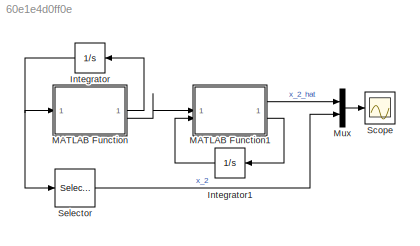
MODEL slx_60e1e4d0ff0e
KIND model
CONFIG AbsTol = auto
CONFIG EnableMultiTasking = off
CONFIG FixedStep = auto
CONFIG MaxStep = 0.01
CONFIG MinStep = auto
CONFIG RelTol = 1e-3
CONFIG SampleTimeConstraint = Unconstrained
CONFIG SolverName = VariableStepAuto
CONFIG StartTime = 0.0
CONFIG StopTime = 10.0
BLOCK [Integrator] Integrator
  InitialCondition = [0.01;0]
  NameLocation = top
BLOCK [Integrator] Integrator1
  InitialCondition = 0.1
  NameLocation = top
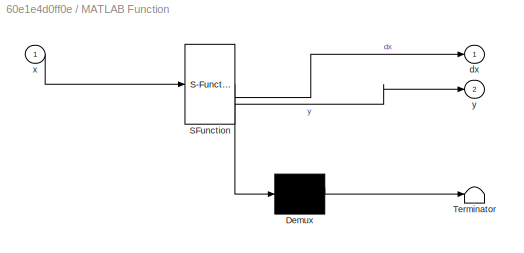
BLOCK [SubSystem] MATLAB Function
  ErrorFcn = Stateflow.Translate.translate
  LibrarySourceBlock = simulink/User-Defined\nFunctions/MATLAB Function
  PermitHierarchicalResolution = ExplicitOnly
  SFBlockType = MATLAB Function
  TreatAsAtomicUnit = on
BLOCK [Demux] MATLAB Function/ Demux 
  Outputs = 1
BLOCK [S-Function] MATLAB Function/ SFunction 
  EnableBusSupport = on
  FunctionName = sf_sfun
  PortCounts = [1 3]
  SFcnIsStateOwnerBlock = off
  SFunctionDeploymentMode = off
  Tag = Stateflow S-Function 2
BLOCK [Terminator] MATLAB Function/ Terminator 
BLOCK [Outport] MATLAB Function/dx
BLOCK [Inport] MATLAB Function/x
BLOCK [Outport] MATLAB Function/y
  Port = 2
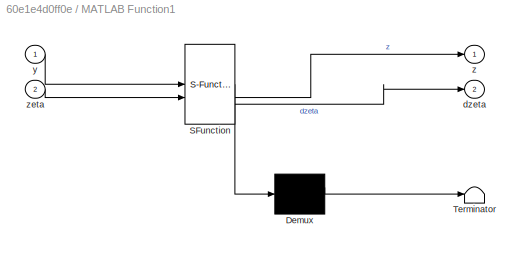
BLOCK [SubSystem] MATLAB Function1
  ErrorFcn = Stateflow.Translate.translate
  LibrarySourceBlock = simulink/User-Defined\nFunctions/MATLAB Function
  PermitHierarchicalResolution = ExplicitOnly
  SFBlockType = MATLAB Function
  TreatAsAtomicUnit = on
BLOCK [Demux] MATLAB Function1/ Demux 
  Outputs = 1
BLOCK [S-Function] MATLAB Function1/ SFunction 
  EnableBusSupport = on
  FunctionName = sf_sfun
  PortCounts = [2 3]
  SFcnIsStateOwnerBlock = off
  SFunctionDeploymentMode = off
  Tag = Stateflow S-Function 1
BLOCK [Terminator] MATLAB Function1/ Terminator 
BLOCK [Outport] MATLAB Function1/dzeta
  Port = 2
BLOCK [Inport] MATLAB Function1/y
BLOCK [Outport] MATLAB Function1/z
BLOCK [Inport] MATLAB Function1/zeta
  Port = 2
BLOCK [Mux] Mux
  DisplayOption = bar
  Inputs = 2
BLOCK [Scope] Scope
  Floating = off
  NumInputPorts = 1
  ScopeSpecificationString = Simulink.scopes.TimeScopeBlockCfg('CurrentConfiguration', extmgr.ConfigurationSet(extmgr.Configuration('Core','General UI',true),extmgr.Configuration('Core','Source UI',true),extmgr.Configuration('Sources','WiredSimulink',true),extmgr.Configuration('Visuals','Time Domain',true,'SerializedDisplays',{struct('MinYLimReal','-0.06499','MaxYLimReal','0.285','YLabelReal','','MinYLimMag','0.00000','MaxYLi...<+1390ch>
BLOCK [Selector] Selector
  IndexOptions = Index vector (dialog)
  Indices = [2]
  InputPortWidth = 2
  OutputSizes = 1
LINE Integrator1:1 -> MATLAB Function1:2
NET Integrator:1 -> MATLAB Function:1, Selector:1
LINE MATLAB Function1:1 -> Mux:1
LINE MATLAB Function1:2 -> Integrator1:1
LINE MATLAB Function:1 -> Integrator:1
LINE MATLAB Function:2 -> MATLAB Function1:1
LINE Mux:1 -> Scope:1
LINE Selector:1 -> Mux:2
note: NET lines group one-source signal fan-out (src -> all destinations, sorted); 1:1 wires keep LINE
CHART MATLAB Function states=1 transitions=1
  STATE_LABEL 'eML_blk_kernel()'
  STATE_LABEL 'SCRIPT:\nfunction [dx, y] = pendulum(x)\nw0 = 3;\n\nx1 = x(1);\nx2 = x(2);\n\ndx1 = x2;\ndx2 = -sin(x1*w0^2);\n\ndx = [dx1; dx2];\ny = x1;\n'
CHART MATLAB Function1 states=1 transitions=1
  STATE_LABEL 'eML_blk_kernel()'
  STATE_LABEL 'SCRIPT:\nfunction [z, dzeta] = obs(y, zeta)\nw0 = 3;\ndzeta = -sin(y*w0^2) - 5*w0*(zeta + 5*w0*y);\nz = zeta + 5*w0*y;\n'
CHART  states=0 transitions=0
CHART  states=0 transitions=0
